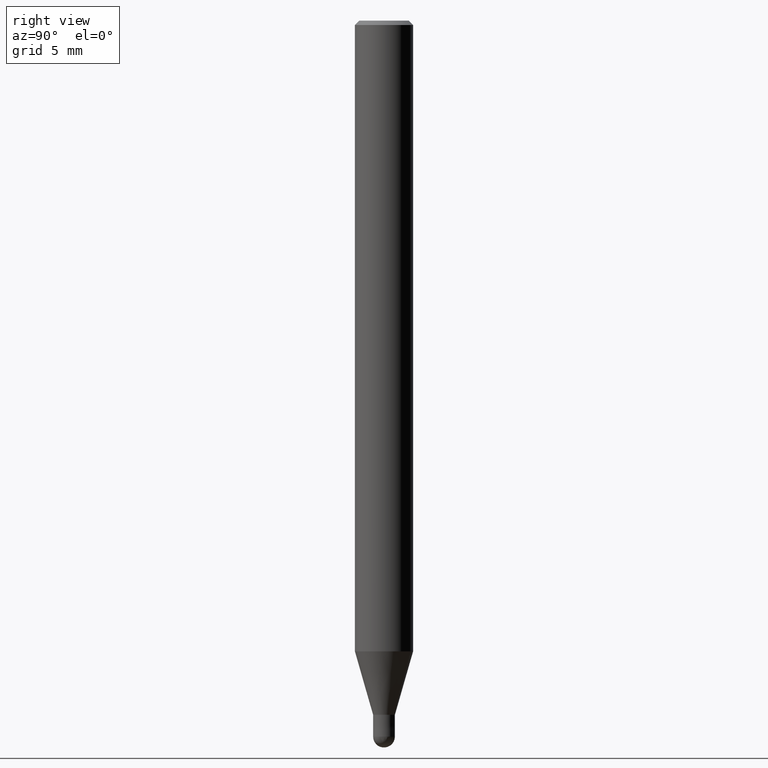
[diagram: clean part render]
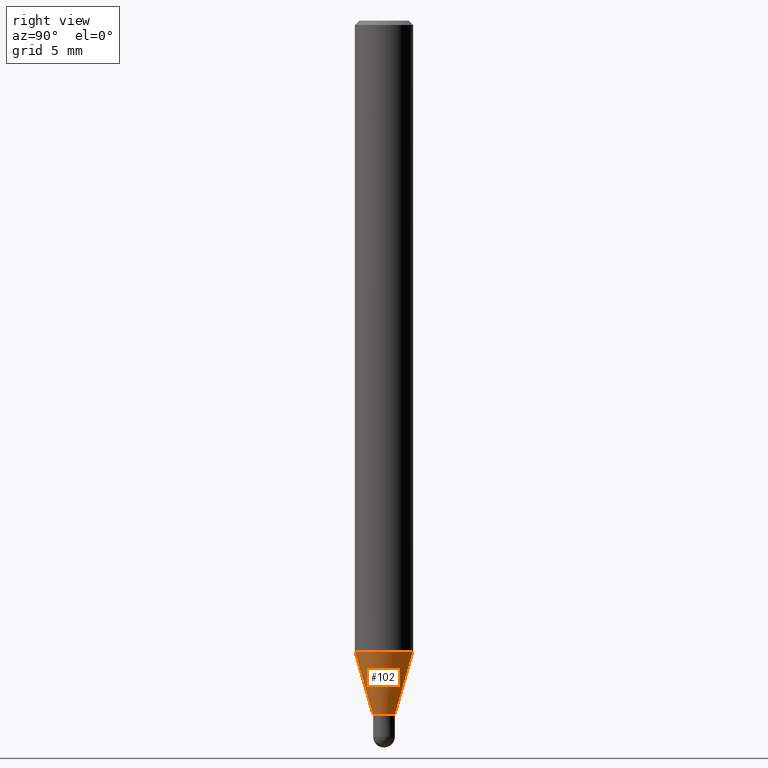
[diagram: same view with one face highlighted and labeled with its STEP entity id]
A machine part, right view. The second image highlights one B-rep face of the part: STEP entity #102.
In plain terms, the highlighted conical surface has half-angle 16.001 deg.
Its self-contained STEP definition (entity closure, byte-faithful):
#100=EDGE_CURVE('',#158,#138,#228,.T.);
#102=ADVANCED_FACE('',(#230),#231,.T.);
#120=EDGE_CURVE('',#186,#138,#252,.T.);
#138=VERTEX_POINT('',#270);
#158=VERTEX_POINT('',#294);
#170=EDGE_CURVE('',#186,#190,#307,.T.);
#184=EDGE_CURVE('',#190,#158,#324,.T.);
#186=VERTEX_POINT('',#326);
#190=VERTEX_POINT('',#330);
#228=LINE('',#364,#365);
#230=FACE_OUTER_BOUND('',#367,.T.);
#231=CONICAL_SURFACE('',#368,1.37495,0.279268973819818);
#252=CIRCLE('',#397,1.99995);
#270=CARTESIAN_POINT('',(2.44915147732706E-016,-1.99995,-43.391));
#294=CARTESIAN_POINT('',(9.18393535049092E-017,-0.74995,-47.75));
#307=LINE('',#461,#462);
#324=CIRCLE('',#483,0.74995);
#326=CARTESIAN_POINT('',(0.0,1.99995,-43.391));
#330=CARTESIAN_POINT('',(0.0,0.74995,-47.75));
#364=CARTESIAN_POINT('',(1.68377250618808E-016,-1.37495,-45.5705));
#365=VECTOR('',#516,1.0);
#367=EDGE_LOOP('',(#518,#519,#520,#521));
#368=AXIS2_PLACEMENT_3D('',#522,#523,#524);
#397=AXIS2_PLACEMENT_3D('',#553,#554,#555);
#461=CARTESIAN_POINT('',(-1.68377250618808E-016,1.37495,-45.5705));
#462=VECTOR('',#621,1.0);
#483=AXIS2_PLACEMENT_3D('',#646,#647,#648);
#516=DIRECTION('',(3.375664374138E-017,-0.27565301809855,0.961257204713265));
#518=ORIENTED_EDGE('',*,*,#170,.F.);
#519=ORIENTED_EDGE('',*,*,#120,.T.);
#520=ORIENTED_EDGE('',*,*,#100,.F.);
#521=ORIENTED_EDGE('',*,*,#184,.F.);
#522=CARTESIAN_POINT('',(0.0,0.0,-45.5705));
#523=DIRECTION('',(-0.0,-0.0,1.0));
#524=DIRECTION('',(0.0,1.0,0.0));
#553=CARTESIAN_POINT('',(0.0,0.0,-43.391));
#554=DIRECTION('',(0.0,0.0,-1.0));
#555=DIRECTION('',(0.0,1.0,0.0));
#621=DIRECTION('',(3.375664374138E-017,-0.27565301809855,-0.961257204713265));
#646=CARTESIAN_POINT('',(0.0,0.0,-47.75));
#647=DIRECTION('',(0.0,0.0,-1.0));
#648=DIRECTION('',(0.0,1.0,0.0));